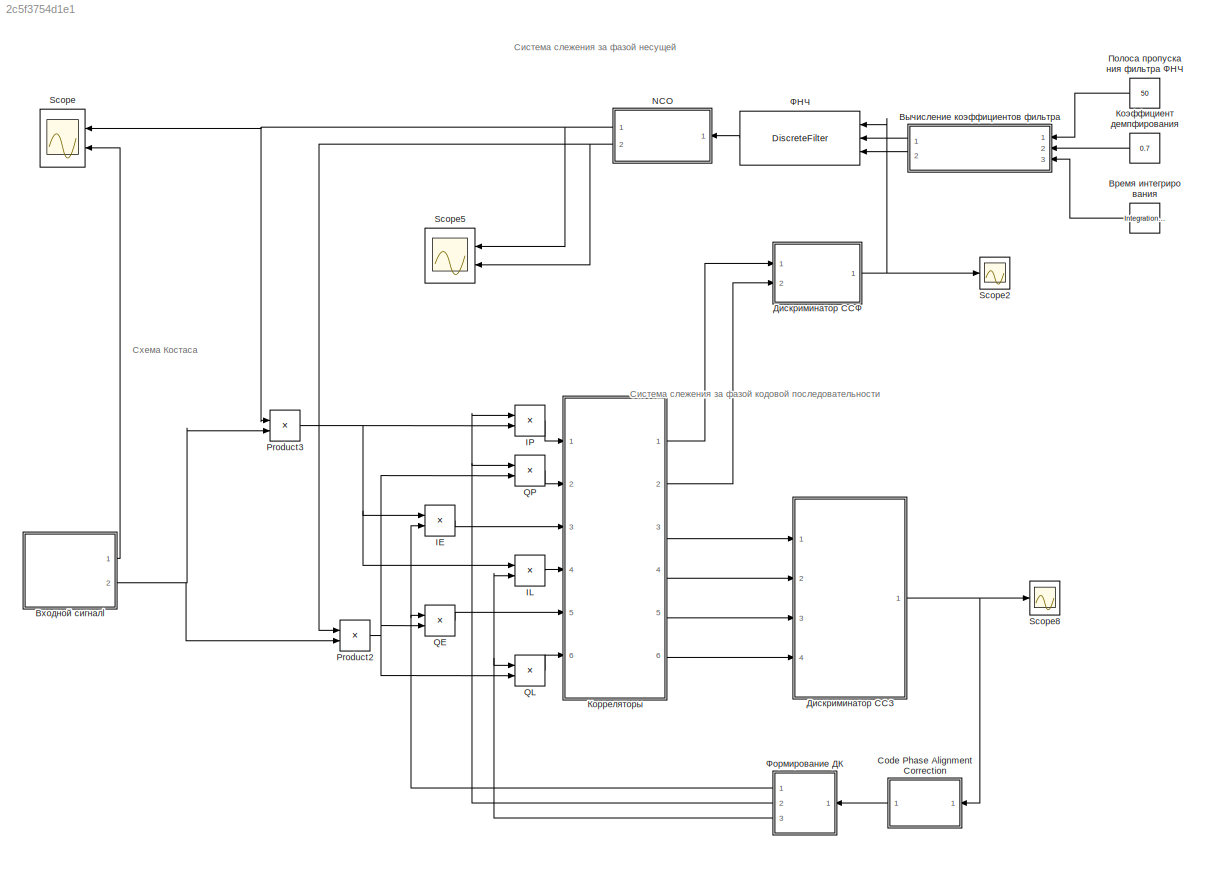
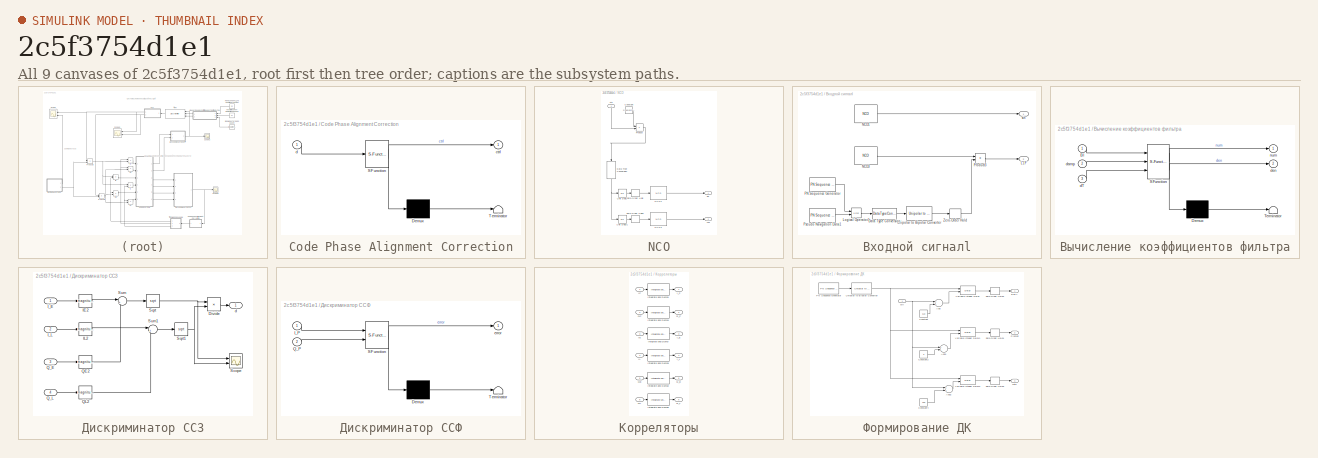
[diagram: thumbnail index - all 9 canvases of the model, root first then tree order]
MODEL slx_2c5f3754d1e1
KIND model
CONFIG AbsTol = auto
CONFIG FixedStep = auto
CONFIG InitFcn = SampleFreq = 122.76e6;\nSample_Time = 1/SampleFreq;\nIntegration_time = 1e-3;
CONFIG MaxStep = Sample_Time
CONFIG MinStep = auto
CONFIG RelTol = 1e-3
CONFIG SampleTimeConstraint = Unconstrained
CONFIG Solver = ode45
CONFIG SolverMode = Auto
CONFIG SolverName = ode45
CONFIG StartTime = 0.0
CONFIG StopTime = 200e-3
BLOCK [SubSystem] Code Phase Alignment Correction
  ErrorFcn = Stateflow.Translate.translate
  PermitHierarchicalResolution = ExplicitOnly
  Ports = [1, 1]
  RequestExecContextInheritance = off
  SFBlockType = MATLAB Function
  TreatAsAtomicUnit = on
  Variant = off
BLOCK [Demux] Code Phase Alignment Correction/ Demux 
  Outputs = 1
  Ports = [1, 1]
BLOCK [S-Function] Code Phase Alignment Correction/ SFunction 
  EnableBusSupport = on
  FunctionName = sf_sfun
  PortCounts = [1 2]
  Ports = [1, 2]
  SFunctionDeploymentMode = off
  Tag = Stateflow S-Function L1F 2
BLOCK [Terminator] Code Phase Alignment Correction/ Terminator 
BLOCK [Outport] Code Phase Alignment Correction/ctrl
  IconDisplay = Port number
BLOCK [Inport] Code Phase Alignment Correction/d
  IconDisplay = Port number
BLOCK [Product] IE
  InputSameDT = off
  OutDataTypeStr = Inherit: Inherit via internal rule
  Ports = [2, 1]
  RndMeth = Floor
  SaturateOnIntegerOverflow = off
BLOCK [Product] IL
  InputSameDT = off
  OutDataTypeStr = Inherit: Inherit via internal rule
  Ports = [2, 1]
  RndMeth = Floor
  SaturateOnIntegerOverflow = off
BLOCK [Product] IP
  InputSameDT = off
  OutDataTypeStr = Inherit: Inherit via internal rule
  Ports = [2, 1]
  RndMeth = Floor
  SaturateOnIntegerOverflow = off
BLOCK [SubSystem] NCO
  Ports = [1, 2]
  RequestExecContextInheritance = off
  Variant = off
BLOCK [Constant] NCO/Constant
  SampleTime = 1e-3
  Value = 2*180*pi*2^16/(1/Sample_Time)
BLOCK [DataTypeConversion] NCO/Data Type Conversion
  OutDataTypeStr = int32
  RndMeth = Floor
  SaturateOnIntegerOverflow = off
BLOCK [Reference] NCO/NCO2  REF=dspsigops/NCO
  Ports = [1, 1]
  SourceBlock = dspsigops/NCO
  SourceType = NCO
BLOCK [Reference] NCO/NCO3  REF=dspsigops/NCO
  Ports = [1, 1]
  SourceBlock = dspsigops/NCO
  SourceType = NCO
BLOCK [Product] NCO/Product
  InputSameDT = off
  OutDataTypeStr = Inherit: Inherit via internal rule
  Ports = [2, 1]
  RndMeth = Floor
  SaturateOnIntegerOverflow = off
BLOCK [UnitDelay] NCO/Unit Delay
  InputProcessing = Elements as channels (sample based)
  SampleTime = -1
BLOCK [UnitDelay] NCO/Unit Delay1
  InputProcessing = Elements as channels (sample based)
  SampleTime = -1
BLOCK [ZeroOrderHold] NCO/Zero-Order Hold
  SampleTime = Sample_Time
BLOCK [ZeroOrderHold] NCO/Zero-Order Hold1
  SampleTime = Sample_Time
BLOCK [Outport] NCO/cos
  IconDisplay = Port number
  Port = 2
BLOCK [Inport] NCO/ctlr
  IconDisplay = Port number
BLOCK [Outport] NCO/sin
  IconDisplay = Port number
BLOCK [Product] Product2
  InputSameDT = off
  OutDataTypeStr = Inherit: Inherit via internal rule
  Ports = [2, 1]
  RndMeth = Floor
  SaturateOnIntegerOverflow = off
BLOCK [Product] Product3
  InputSameDT = off
  OutDataTypeStr = Inherit: Inherit via internal rule
  Ports = [2, 1]
  RndMeth = Floor
  SaturateOnIntegerOverflow = off
BLOCK [Product] QE
  InputSameDT = off
  OutDataTypeStr = Inherit: Inherit via internal rule
  Ports = [2, 1]
  RndMeth = Floor
  SaturateOnIntegerOverflow = off
BLOCK [Product] QL
  InputSameDT = off
  OutDataTypeStr = Inherit: Inherit via internal rule
  Ports = [2, 1]
  RndMeth = Floor
  SaturateOnIntegerOverflow = off
BLOCK [Product] QP
  InputSameDT = off
  OutDataTypeStr = Inherit: Inherit via internal rule
  Ports = [2, 1]
  RndMeth = Floor
  SaturateOnIntegerOverflow = off
BLOCK [Scope] Scope
  NumInputPorts = 2
  Ports = [2]
  ScopeSpecificationString = Simulink.scopes.TimeScopeBlockCfg('CurrentConfiguration', extmgr.ConfigurationSet(extmgr.Configuration('Core','General UI',true),extmgr.Configuration('Core','Source UI',true),extmgr.Configuration('Sources','WiredSimulink',true,'DataLoggingVariableName','ScopeData1'),extmgr.Configuration('Visuals','Time Domain',true,'SerializedDisplays',{struct('MinYLimReal','-1.20512','MaxYLimReal','1.07701','YLab...<+1773ch>
BLOCK [Scope] Scope2
  Ports = [1]
  ScopeSpecificationString = Simulink.scopes.TimeScopeBlockCfg('CurrentConfiguration', extmgr.ConfigurationSet(extmgr.Configuration('Core','General UI',true),extmgr.Configuration('Core','Source UI',true),extmgr.Configuration('Sources','WiredSimulink',true,'DataLoggingVariableName','ScopeData2','DataLoggingLimitDataPoints',true,'DataLoggingSaveFormat','Array','DataLoggingDecimation','1','DataLoggingDecimateData',true),extmgr.C...<+1628ch>
BLOCK [Scope] Scope5
  NumInputPorts = 2
  Ports = [2]
  ScopeSpecificationString = Simulink.scopes.TimeScopeBlockCfg('CurrentConfiguration', extmgr.ConfigurationSet(extmgr.Configuration('Core','General UI',true),extmgr.Configuration('Core','Source UI',true),extmgr.Configuration('Sources','WiredSimulink',true,'DataLoggingVariableName','ScopeData5'),extmgr.Configuration('Visuals','Time Domain',true,'SerializedDisplays',{struct('MinYLimReal','-1.29549','MaxYLimReal','1.1506','YLabe...<+1757ch>
BLOCK [Scope] Scope8
  Ports = [1]
  ScopeSpecificationString = Simulink.scopes.TimeScopeBlockCfg('CurrentConfiguration', extmgr.ConfigurationSet(extmgr.Configuration('Core','General UI',true),extmgr.Configuration('Core','Source UI',true),extmgr.Configuration('Sources','WiredSimulink',true,'DataLoggingVariableName','ScopeData1'),extmgr.Configuration('Visuals','Time Domain',true,'SerializedDisplays',{struct('MinYLimReal','0.96915','MaxYLimReal','1.08631','YLabe...<+1422ch>
BLOCK [Constant] Время интегрирования
  Value = Integration_time
BLOCK [SubSystem] Входной сигналl
  Ports = [0, 2]
  RequestExecContextInheritance = off
  Variant = off
BLOCK [DataTypeConversion] Входной сигналl/Data Type Conversion
  OutDataTypeStr = double
  RndMeth = Floor
  SaturateOnIntegerOverflow = off
BLOCK [Outport] Входной сигналl/L1F
  IconDisplay = Port number
  Port = 2
BLOCK [Logic] Входной сигналl/Logical Operator2
  AllPortsSameDT = off
  Operator = XOR
  OutDataTypeStr = boolean
  Ports = [2, 1]
BLOCK [Reference] Входной сигналl/NCO1  REF=dspsigops/NCO
  Ports = [0, 1]
  SourceBlock = dspsigops/NCO
  SourceType = NCO
BLOCK [Reference] Входной сигналl/NCO3  REF=dspsigops/NCO
  Ports = [0, 1]
  SourceBlock = dspsigops/NCO
  SourceType = NCO
BLOCK [Reference] Входной сигналl/PN Sequence Generator  REF=commseqgen3/PN Sequence
Generator
  Ports = [0, 1]
  SourceBlock = commseqgen3/PN Sequence\nGenerator
  SourceType = PN Sequence Generator
BLOCK [Product] Входной сигналl/Product3
  InputSameDT = off
  OutDataTypeStr = Inherit: Inherit via internal rule
  Ports = [2, 1]
  RndMeth = Floor
  SaturateOnIntegerOverflow = off
BLOCK [Reference] Входной сигналl/Pseudo Navigation Data1  REF=commseqgen3/PN Sequence
Generator
  Ports = [0, 1]
  SourceBlock = commseqgen3/PN Sequence\nGenerator
  SourceType = PN Sequence Generator
BLOCK [Reference] Входной сигналl/Unipolar to Bipolar Converter  REF=commutil2/Unipolar to
Bipolar
Converter
  Ports = [1, 1]
  SourceBlock = commutil2/Unipolar to\nBipolar\nConverter
  SourceType = Unipolar to Bipolar Converter
BLOCK [ZeroOrderHold] Входной сигналl/Zero-Order Hold
  SampleTime = Sample_Time
BLOCK [Outport] Входной сигналl/sin
  IconDisplay = Port number
BLOCK [SubSystem] Вычисление коэффициентов фильтра
  ErrorFcn = Stateflow.Translate.translate
  PermitHierarchicalResolution = ExplicitOnly
  Ports = [3, 2]
  RequestExecContextInheritance = off
  SFBlockType = MATLAB Function
  TreatAsAtomicUnit = on
  Variant = off
BLOCK [Demux] Вычисление коэффициентов фильтра/ Demux 
  Outputs = 1
  Ports = [1, 1]
BLOCK [S-Function] Вычисление коэффициентов фильтра/ SFunction 
  EnableBusSupport = on
  FunctionName = sf_sfun
  PortCounts = [3 3]
  Ports = [3, 3]
  SFunctionDeploymentMode = off
  Tag = Stateflow S-Function L1F 4
BLOCK [Terminator] Вычисление коэффициентов фильтра/ Terminator 
BLOCK [Inport] Вычисление коэффициентов фильтра/Bl
  IconDisplay = Port number
BLOCK [Inport] Вычисление коэффициентов фильтра/dT
  IconDisplay = Port number
  Port = 3
BLOCK [Inport] Вычисление коэффициентов фильтра/damp
  IconDisplay = Port number
  Port = 2
BLOCK [Outport] Вычисление коэффициентов фильтра/den
  IconDisplay = Port number
  Port = 2
BLOCK [Outport] Вычисление коэффициентов фильтра/num
  IconDisplay = Port number
BLOCK [SubSystem] Дискриминатор ССЗ
  Ports = [4, 1]
  RequestExecContextInheritance = off
  Variant = off
BLOCK [Product] Дискриминатор ССЗ/Divide
  InputSameDT = off
  Inputs = */
  OutDataTypeStr = Inherit: Inherit via internal rule
  Ports = [2, 1]
  RndMeth = Floor
  SaturateOnIntegerOverflow = off
BLOCK [Math] Дискриминатор ССЗ/IE2
  Operator = magnitude^2
  Ports = [1, 1]
BLOCK [Math] Дискриминатор ССЗ/IL2
  Operator = magnitude^2
  Ports = [1, 1]
BLOCK [Inport] Дискриминатор ССЗ/I_E
  IconDisplay = Port number
BLOCK [Inport] Дискриминатор ССЗ/I_L
  IconDisplay = Port number
  Port = 2
BLOCK [Math] Дискриминатор ССЗ/QE2
  Operator = magnitude^2
  Ports = [1, 1]
BLOCK [Math] Дискриминатор ССЗ/QL2
  Operator = magnitude^2
  Ports = [1, 1]
BLOCK [Inport] Дискриминатор ССЗ/Q_E
  IconDisplay = Port number
  Port = 3
BLOCK [Inport] Дискриминатор ССЗ/Q_L
  IconDisplay = Port number
  Port = 4
BLOCK [Scope] Дискриминатор ССЗ/Scope
  NumInputPorts = 2
  Ports = [2]
  ScopeSpecificationString = C++SS(StrPVP('SaveName','ScopeData1'),StrPVP('LimitDataPoints','on'),StrPVP('DataFormat','Array'),StrPVP('Decimation','1'),StrPVP('BlockParamSampleInput','off'))
BLOCK [Sqrt] Дискриминатор ССЗ/Sqrt
BLOCK [Sqrt] Дискриминатор ССЗ/Sqrt1
BLOCK [Sum] Дискриминатор ССЗ/Sum
  IconShape = round
  InputSameDT = off
  Inputs = |++
  OutDataTypeStr = Inherit: Inherit via internal rule
  Ports = [2, 1]
  SaturateOnIntegerOverflow = off
BLOCK [Sum] Дискриминатор ССЗ/Sum1
  IconShape = round
  InputSameDT = off
  Inputs = |++
  OutDataTypeStr = Inherit: Inherit via internal rule
  Ports = [2, 1]
  SaturateOnIntegerOverflow = off
BLOCK [Outport] Дискриминатор ССЗ/d
  IconDisplay = Port number
BLOCK [SubSystem] Дискриминатор ССФ
  ErrorFcn = Stateflow.Translate.translate
  PermitHierarchicalResolution = ExplicitOnly
  Ports = [2, 1]
  RequestExecContextInheritance = off
  SFBlockType = MATLAB Function
  TreatAsAtomicUnit = on
  Variant = off
BLOCK [Demux] Дискриминатор ССФ/ Demux 
  Outputs = 1
  Ports = [1, 1]
BLOCK [S-Function] Дискриминатор ССФ/ SFunction 
  EnableBusSupport = on
  FunctionName = sf_sfun
  PortCounts = [2 2]
  Ports = [2, 2]
  SFunctionDeploymentMode = off
  Tag = Stateflow S-Function L1F 3
BLOCK [Terminator] Дискриминатор ССФ/ Terminator 
BLOCK [Inport] Дискриминатор ССФ/I_P
  IconDisplay = Port number
BLOCK [Inport] Дискриминатор ССФ/Q_P
  IconDisplay = Port number
  Port = 2
BLOCK [Outport] Дискриминатор ССФ/error
  IconDisplay = Port number
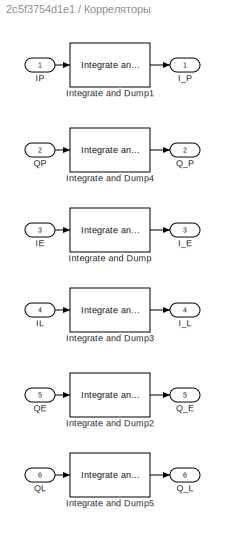
BLOCK [SubSystem] Корреляторы
  Ports = [6, 6]
  RequestExecContextInheritance = off
  Variant = off
BLOCK [Inport] Корреляторы/IE
  IconDisplay = Port number
  Port = 3
BLOCK [Inport] Корреляторы/IL
  IconDisplay = Port number
  Port = 4
BLOCK [Inport] Корреляторы/IP
  IconDisplay = Port number
BLOCK [Outport] Корреляторы/I_E
  IconDisplay = Port number
  Port = 3
BLOCK [Outport] Корреляторы/I_L
  IconDisplay = Port number
  Port = 4
BLOCK [Outport] Корреляторы/I_P
  IconDisplay = Port number
BLOCK [Reference] Корреляторы/Integrate and Dump  REF=commfilt2/Integrate
and Dump
  Ports = [1, 1]
  SourceBlock = commfilt2/Integrate\nand Dump
  SourceType = Integrate and Dump
BLOCK [Reference] Корреляторы/Integrate and Dump1  REF=commfilt2/Integrate
and Dump
  Ports = [1, 1]
  SourceBlock = commfilt2/Integrate\nand Dump
  SourceType = Integrate and Dump
BLOCK [Reference] Корреляторы/Integrate and Dump2  REF=commfilt2/Integrate
and Dump
  Ports = [1, 1]
  SourceBlock = commfilt2/Integrate\nand Dump
  SourceType = Integrate and Dump
BLOCK [Reference] Корреляторы/Integrate and Dump3  REF=commfilt2/Integrate
and Dump
  Ports = [1, 1]
  SourceBlock = commfilt2/Integrate\nand Dump
  SourceType = Integrate and Dump
BLOCK [Reference] Корреляторы/Integrate and Dump4  REF=commfilt2/Integrate
and Dump
  Ports = [1, 1]
  SourceBlock = commfilt2/Integrate\nand Dump
  SourceType = Integrate and Dump
BLOCK [Reference] Корреляторы/Integrate and Dump5  REF=commfilt2/Integrate
and Dump
  Ports = [1, 1]
  SourceBlock = commfilt2/Integrate\nand Dump
  SourceType = Integrate and Dump
BLOCK [Inport] Корреляторы/QE
  IconDisplay = Port number
  Port = 5
BLOCK [Inport] Корреляторы/QL
  IconDisplay = Port number
  Port = 6
BLOCK [Inport] Корреляторы/QP
  IconDisplay = Port number
  Port = 2
BLOCK [Outport] Корреляторы/Q_E
  IconDisplay = Port number
  Port = 5
BLOCK [Outport] Корреляторы/Q_L
  IconDisplay = Port number
  Port = 6
BLOCK [Outport] Корреляторы/Q_P
  IconDisplay = Port number
  Port = 2
BLOCK [Constant] Коэффициент демпфирования
  Value = 0.7
BLOCK [Constant] Полоса пропускания фильтра ФНЧ
  Value = 50
BLOCK [DiscreteFilter] ФНЧ
  DenAccumDataTypeStr = int16
  DenProductDataTypeStr = int16
  Denominator = [1 -1 1]
  DenominatorSource = Input port
  FilterStructure = Direct form I
  InputPortMap = u0,p1,p3
  LockScale = on
  NumAccumDataTypeStr = int16
  NumProductDataTypeStr = int16
  Numerator = c1+c2
  NumeratorSource = Input port
  OutDataTypeStr = int16
  Ports = [3, 1]
  SampleTime = Integration_time
  SaturateOnIntegerOverflow = on
  a0EqualsOne = on
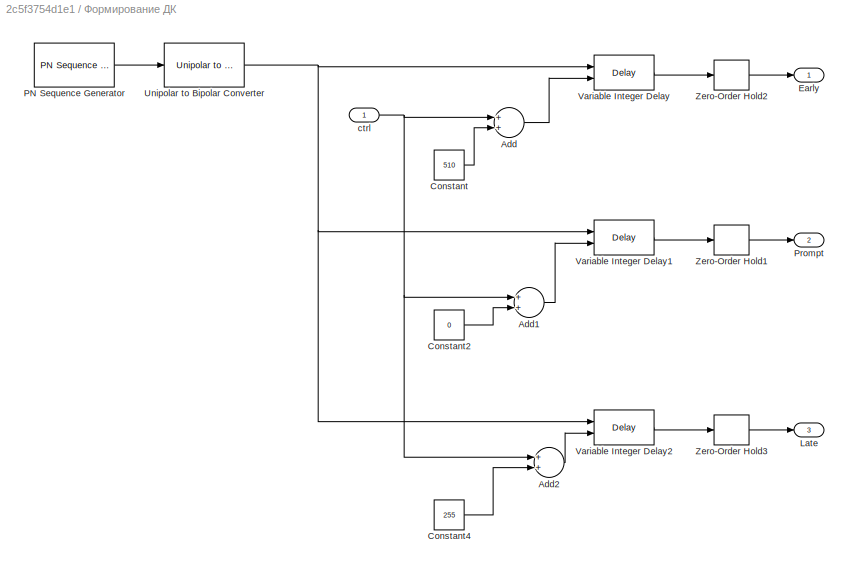
BLOCK [SubSystem] Формирование ДК
  Ports = [1, 3]
  RequestExecContextInheritance = off
  Variant = off
BLOCK [Sum] Формирование ДК/Add
  InputSameDT = off
  OutDataTypeStr = Inherit: Inherit via internal rule
  Ports = [2, 1]
  SaturateOnIntegerOverflow = off
BLOCK [Sum] Формирование ДК/Add1
  InputSameDT = off
  OutDataTypeStr = Inherit: Inherit via internal rule
  Ports = [2, 1]
  SaturateOnIntegerOverflow = off
BLOCK [Sum] Формирование ДК/Add2
  InputSameDT = off
  OutDataTypeStr = Inherit: Inherit via internal rule
  Ports = [2, 1]
  SaturateOnIntegerOverflow = off
BLOCK [Constant] Формирование ДК/Constant
  OutDataTypeStr = double
  SampleTime = Integration_time
  Value = 510
BLOCK [Constant] Формирование ДК/Constant2
  OutDataTypeStr = double
  SampleTime = Integration_time
  Value = 0
BLOCK [Constant] Формирование ДК/Constant4
  OutDataTypeStr = double
  SampleTime = Integration_time
  Value = 255
BLOCK [Outport] Формирование ДК/Early
  IconDisplay = Port number
BLOCK [Outport] Формирование ДК/Late
  IconDisplay = Port number
  Port = 3
BLOCK [Reference] Формирование ДК/PN Sequence Generator  REF=commseqgen3/PN Sequence
Generator
  Ports = [0, 1]
  SourceBlock = commseqgen3/PN Sequence\nGenerator
  SourceType = PN Sequence Generator
BLOCK [Outport] Формирование ДК/Prompt
  IconDisplay = Port number
  Port = 2
BLOCK [Reference] Формирование ДК/Unipolar to Bipolar Converter  REF=commutil2/Unipolar to
Bipolar
Converter
  Ports = [1, 1]
  SourceBlock = commutil2/Unipolar to\nBipolar\nConverter
  SourceType = Unipolar to Bipolar Converter
BLOCK [Delay] Формирование ДК/Variable Integer Delay
  DelayLengthSource = Input port
  InputPortMap = u0,p1
  Ports = [2, 1]
BLOCK [Delay] Формирование ДК/Variable Integer Delay1
  DelayLengthSource = Input port
  InputPortMap = u0,p1
  Ports = [2, 1]
BLOCK [Delay] Формирование ДК/Variable Integer Delay2
  DelayLengthSource = Input port
  InputPortMap = u0,p1
  Ports = [2, 1]
BLOCK [ZeroOrderHold] Формирование ДК/Zero-Order Hold1
  SampleTime = Sample_Time
BLOCK [ZeroOrderHold] Формирование ДК/Zero-Order Hold2
  SampleTime = Sample_Time
BLOCK [ZeroOrderHold] Формирование ДК/Zero-Order Hold3
  SampleTime = Sample_Time
BLOCK [Inport] Формирование ДК/ctrl
  IconDisplay = Port number
ANNOTATION (root): Система слежения за фазой кодовой последовательности
ANNOTATION (root): Система слежения за фазой несущей
ANNOTATION (root): Схема Костаса
LINE Code Phase Alignment Correction:1 -> Формирование ДК:1
LINE IE:1 -> Корреляторы:3
LINE IL:1 -> Корреляторы:4
LINE IP:1 -> Корреляторы:1
LINE NCO/Constant:1 -> NCO/Product:1
NET NCO/Data Type Conversion:1 -> NCO/Unit Delay1:1, NCO/Unit Delay:1
LINE NCO/NCO2:1 -> NCO/sin:1
LINE NCO/NCO3:1 -> NCO/cos:1
LINE NCO/Product:1 -> NCO/Data Type Conversion:1
LINE NCO/Unit Delay1:1 -> NCO/Zero-Order Hold1:1
LINE NCO/Unit Delay:1 -> NCO/Zero-Order Hold:1
LINE NCO/Zero-Order Hold1:1 -> NCO/NCO3:1
LINE NCO/Zero-Order Hold:1 -> NCO/NCO2:1
LINE NCO/ctlr:1 -> NCO/Product:2
NET NCO:1 -> Product3:1, Scope5:1, Scope:1
NET NCO:2 -> Product2:1, Scope5:2
NET Product2:1 -> QE:2, QL:2, QP:2
NET Product3:1 -> IE:1, IL:1, IP:2
LINE QE:1 -> Корреляторы:5
LINE QL:1 -> Корреляторы:6
LINE QP:1 -> Корреляторы:2
LINE Время интегрирования:1 -> Вычисление коэффициентов фильтра:3
LINE Входной сигналl/Data Type Conversion:1 -> Входной сигналl/Unipolar to Bipolar Converter:1
LINE Входной сигналl/Logical Operator2:1 -> Входной сигналl/Data Type Conversion:1
LINE Входной сигналl/NCO1:1 -> Входной сигналl/sin:1
LINE Входной сигналl/NCO3:1 -> Входной сигналl/Product3:1
LINE Входной сигналl/PN Sequence Generator:1 -> Входной сигналl/Logical Operator2:1
LINE Входной сигналl/Product3:1 -> Входной сигналl/L1F:1
LINE Входной сигналl/Pseudo Navigation Data1:1 -> Входной сигналl/Logical Operator2:2
LINE Входной сигналl/Unipolar to Bipolar Converter:1 -> Входной сигналl/Zero-Order Hold:1
LINE Входной сигналl/Zero-Order Hold:1 -> Входной сигналl/Product3:2
LINE Входной сигналl:1 -> Scope:2
NET Входной сигналl:2 -> Product2:2, Product3:2
LINE Вычисление коэффициентов фильтра:1 -> ФНЧ:2
LINE Вычисление коэффициентов фильтра:2 -> ФНЧ:3
LINE Дискриминатор ССЗ/Divide:1 -> Дискриминатор ССЗ/d:1
LINE Дискриминатор ССЗ/IE2:1 -> Дискриминатор ССЗ/Sum:1
LINE Дискриминатор ССЗ/IL2:1 -> Дискриминатор ССЗ/Sum1:1
LINE Дискриминатор ССЗ/I_E:1 -> Дискриминатор ССЗ/IE2:1
LINE Дискриминатор ССЗ/I_L:1 -> Дискриминатор ССЗ/IL2:1
LINE Дискриминатор ССЗ/QE2:1 -> Дискриминатор ССЗ/Sum:2
LINE Дискриминатор ССЗ/QL2:1 -> Дискриминатор ССЗ/Sum1:2
LINE Дискриминатор ССЗ/Q_E:1 -> Дискриминатор ССЗ/QE2:1
LINE Дискриминатор ССЗ/Q_L:1 -> Дискриминатор ССЗ/QL2:1
NET Дискриминатор ССЗ/Sqrt1:1 -> Дискриминатор ССЗ/Divide:2, Дискриминатор ССЗ/Scope:2
NET Дискриминатор ССЗ/Sqrt:1 -> Дискриминатор ССЗ/Divide:1, Дискриминатор ССЗ/Scope:1
LINE Дискриминатор ССЗ/Sum1:1 -> Дискриминатор ССЗ/Sqrt1:1
LINE Дискриминатор ССЗ/Sum:1 -> Дискриминатор ССЗ/Sqrt:1
NET Дискриминатор ССЗ:1 -> Code Phase Alignment Correction:1, Scope8:1
NET Дискриминатор ССФ:1 -> Scope2:1, ФНЧ:1
LINE Корреляторы/IE:1 -> Корреляторы/Integrate and Dump:1
LINE Корреляторы/IL:1 -> Корреляторы/Integrate and Dump3:1
LINE Корреляторы/IP:1 -> Корреляторы/Integrate and Dump1:1
LINE Корреляторы/Integrate and Dump1:1 -> Корреляторы/I_P:1
LINE Корреляторы/Integrate and Dump2:1 -> Корреляторы/Q_E:1
LINE Корреляторы/Integrate and Dump3:1 -> Корреляторы/I_L:1
LINE Корреляторы/Integrate and Dump4:1 -> Корреляторы/Q_P:1
LINE Корреляторы/Integrate and Dump5:1 -> Корреляторы/Q_L:1
LINE Корреляторы/Integrate and Dump:1 -> Корреляторы/I_E:1
LINE Корреляторы/QE:1 -> Корреляторы/Integrate and Dump2:1
LINE Корреляторы/QL:1 -> Корреляторы/Integrate and Dump5:1
LINE Корреляторы/QP:1 -> Корреляторы/Integrate and Dump4:1
LINE Корреляторы:1 -> Дискриминатор ССФ:1
LINE Корреляторы:2 -> Дискриминатор ССФ:2
LINE Корреляторы:3 -> Дискриминатор ССЗ:1
LINE Корреляторы:4 -> Дискриминатор ССЗ:2
LINE Корреляторы:5 -> Дискриминатор ССЗ:3
LINE Корреляторы:6 -> Дискриминатор ССЗ:4
LINE Коэффициент демпфирования:1 -> Вычисление коэффициентов фильтра:2
LINE Полоса пропускания фильтра ФНЧ:1 -> Вычисление коэффициентов фильтра:1
LINE ФНЧ:1 -> NCO:1
LINE Формирование ДК/Add1:1 -> Формирование ДК/Variable Integer Delay1:2
LINE Формирование ДК/Add2:1 -> Формирование ДК/Variable Integer Delay2:2
LINE Формирование ДК/Add:1 -> Формирование ДК/Variable Integer Delay:2
LINE Формирование ДК/Constant2:1 -> Формирование ДК/Add1:2
LINE Формирование ДК/Constant4:1 -> Формирование ДК/Add2:2
LINE Формирование ДК/Constant:1 -> Формирование ДК/Add:2
LINE Формирование ДК/PN Sequence Generator:1 -> Формирование ДК/Unipolar to Bipolar Converter:1
NET Формирование ДК/Unipolar to Bipolar Converter:1 -> Формирование ДК/Variable Integer Delay1:1, Формирование ДК/Variable Integer Delay2:1, Формирование ДК/Variable Integer Delay:1
LINE Формирование ДК/Variable Integer Delay1:1 -> Формирование ДК/Zero-Order Hold1:1
LINE Формирование ДК/Variable Integer Delay2:1 -> Формирование ДК/Zero-Order Hold3:1
LINE Формирование ДК/Variable Integer Delay:1 -> Формирование ДК/Zero-Order Hold2:1
LINE Формирование ДК/Zero-Order Hold1:1 -> Формирование ДК/Prompt:1
LINE Формирование ДК/Zero-Order Hold2:1 -> Формирование ДК/Early:1
LINE Формирование ДК/Zero-Order Hold3:1 -> Формирование ДК/Late:1
NET Формирование ДК/ctrl:1 -> Формирование ДК/Add1:1, Формирование ДК/Add2:1, Формирование ДК/Add:1
NET Формирование ДК:1 -> IE:2, QE:1
NET Формирование ДК:2 -> IP:1, QP:1
NET Формирование ДК:3 -> IL:2, QL:1
note: NET lines group one-source signal fan-out (src -> all destinations, sorted); 1:1 wires keep LINE
CHART Code Phase
Alignment Correction states=1 transitions=1
  STATE_LABEL 'eML_blk_kernel()'
  STATE_LABEL 'SCRIPT:\nfunction ctrl = fcn(d)\n    ctrl = 0;\n    if d > 1.5\n    ctrl = ctrl - 1; \n    elseif d < 0.8\n    ctrl = ctrl + 1; \n    else\n    ctrl = ctrl + 0; \n    end\nend'
CHART Дискриминатор ССФ states=1 transitions=1
  STATE_LABEL 'eML_blk_kernel()'
  STATE_LABEL 'SCRIPT:\nfunction error = fcn(I_P,Q_P)\nTbAn = [0 1 2 3 4 5 6 7 8 9 10 11 12 13 14 15 16 17 18 19 20 21 22 23 24 25 26 27 28 29 30 31 32 33 34 35 36 37 38 39 40 41 42 43 44 45 46 47 48 49 50 51 52 52 53 54 55 56 57 58 59 60 61 61 62 63 64 65 66 67 68 68 69 70 71 72 73 73 74 75 76 77 78 78 79 80 81 82 82 83 84 85 85 86 87 88 89 89 90 91 91 92 93 94 94 95 96 97 97 98 99 99 100 101 101 102 103 103 104 ...<+779ch>'
CHART Вычисление коэффициентов 
фильтра states=1 transitions=1
  STATE_LABEL 'eML_blk_kernel()'
  STATE_LABEL 'SCRIPT:\nfunction [num, den]= fcn(Bl, damp,dT)\n    wn = 2*pi*8*Bl*damp/(4*damp*damp+1);\n    k = 400*pi;\n    c1 = 1/k*8*damp*wn*dT/(4+4*damp*wn*dT+wn*wn*dT*dT);\n    c2 = 1/k*4*wn*wn*dT*dT/(4+4*damp*wn*dT+wn*wn*dT*dT);\n    num = [c1+c2 -c1];\n    den = [1 -1];\nend'
